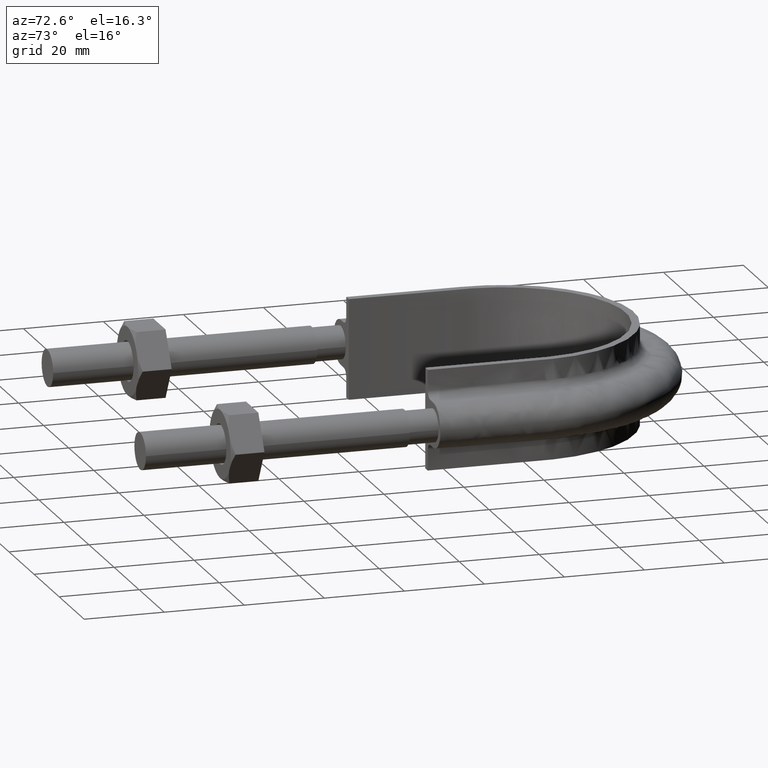
[diagram: clean part render]
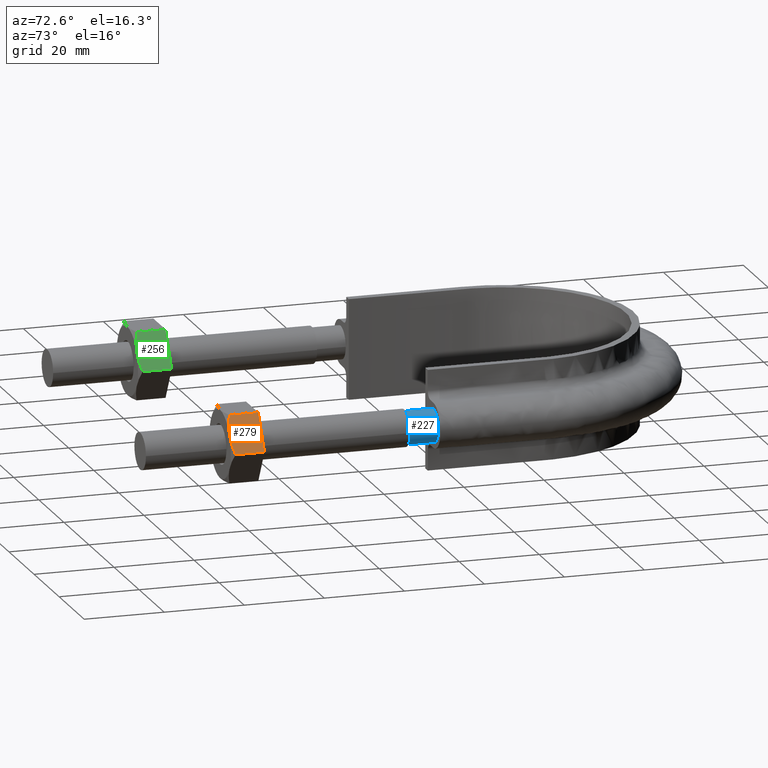
[diagram: same view with three faces highlighted in distinct colors, each labeled with its STEP entity id]
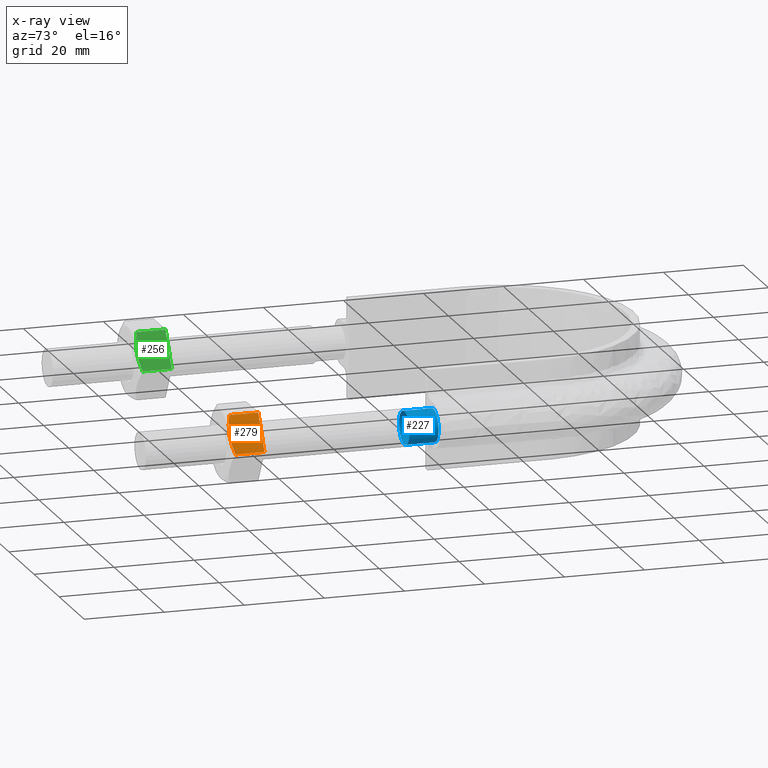
[diagram: x-ray of the same camera — body ghosted, the three highlighted faces saturated]
A machine part, auxiliary view with three faces highlighted in distinct colors.
The next image is the same camera in x-ray (body ghosted, the three faces saturated) — at least one of them is partly hidden behind the body in this view.
Their STEP definitions:

[orange] entity #279 — the highlighted planar face has unit normal (-0.866, 0, -0.5).
#279 = ADVANCED_FACE( '', ( #433 ), #434, .F. );
#433 = FACE_OUTER_BOUND( '', #1430, .T. );
#434 = PLANE( '', #1431 );
#1430 = EDGE_LOOP( '', ( #1892, #1893, #1894, #1895, #1896 ) );
#1431 = AXIS2_PLACEMENT_3D( '', #1897, #1898, #1899 );
#1892 = ORIENTED_EDGE( '', *, *, #2137, .F. );
#1893 = ORIENTED_EDGE( '', *, *, #2104, .F. );
#1894 = ORIENTED_EDGE( '', *, *, #2138, .F. );
#1895 = ORIENTED_EDGE( '', *, *, #2121, .F. );
#1896 = ORIENTED_EDGE( '', *, *, #2132, .F. );
#1897 = CARTESIAN_POINT( '', ( 41.9074772881085, 27.9999999999964, 8.50000000000193 ) );
#1898 = DIRECTION( '', ( -0.866025403784242, 1.81492883563574E-016, -0.500000000000340 ) );
#1899 = DIRECTION( '', ( -2.44921270764476E-016, -1.00000000000000, 6.12303176911189E-017 ) );
#2104 = EDGE_CURVE( '', #2319, #2322, #2323, .T. );
#2121 = EDGE_CURVE( '', #2351, #2353, #2354, .T. );
#2132 = EDGE_CURVE( '', #2372, #2351, #2374, .T. );
#2137 = EDGE_CURVE( '', #2322, #2372, #2381, .T. );
#2138 = EDGE_CURVE( '', #2353, #2319, #2382, .F. );
#2319 = VERTEX_POINT( '', #2902 );
#2322 = VERTEX_POINT( '', #2905 );
#2323 = B_SPLINE_CURVE_WITH_KNOTS( '', 3, ( #2906, #2907, #2908, #2909, #2910, #2911 ), .UNSPECIFIED., .F., .F., ( 4, 2, 4 ), ( 0.0107224888714710, 0.0132032657403443, 0.0156840426092177 ), .UNSPECIFIED. );
#2351 = VERTEX_POINT( '', #2961 );
#2353 = VERTEX_POINT( '', #2963 );
#2354 = LINE( '', #2964, #2965 );
#2372 = VERTEX_POINT( '', #2987 );
#2374 = LINE( '', #2989, #2990 );
#2381 = B_SPLINE_CURVE_WITH_KNOTS( '', 3, ( #3010, #3011, #3012, #3013, #3014, #3015 ), .UNSPECIFIED., .F., .F., ( 4, 2, 4 ), ( 0.0156840426092177, 0.0181633795370703, 0.0206427164649230 ), .UNSPECIFIED. );
#2382 = LINE( '', #3016, #3017 );
#2902 = CARTESIAN_POINT( '', ( 46.7999656118192, 20.7505553499429, 0.0259616479052294 ) );
#2905 = CARTESIAN_POINT( '', ( 44.3612159321661, 19.9999999999964, 4.25000000000289 ) );
#2906 = CARTESIAN_POINT( '', ( 46.7999656118192, 20.7505553499429, 0.0259616479052272 ) );
#2907 = CARTESIAN_POINT( '', ( 46.4026528986380, 20.5222200930378, 0.714127453627445 ) );
#2908 = CARTESIAN_POINT( '', ( 46.0018172433292, 20.3336547117137, 1.40839517410688 ) );
#2909 = CARTESIAN_POINT( '', ( 45.1899065168897, 20.0721149177781, 2.81466580350890 ) );
#2910 = CARTESIAN_POINT( '', ( 44.7787553089721, 19.9999999999964, 3.52680058521480 ) );
#2911 = CARTESIAN_POINT( '', ( 44.3612159321661, 19.9999999999964, 4.25000000000289 ) );
#2961 = CARTESIAN_POINT( '', ( 41.9224662525130, 27.9999999999964, 8.47403835210055 ) );
#2963 = CARTESIAN_POINT( '', ( 46.7999656118192, 27.9999999999964, 0.0259616479052289 ) );
#2964 = CARTESIAN_POINT( '', ( 39.4612159321627, 27.9999999999964, 12.7370489570885 ) );
#2965 = VECTOR( '', #3260, 1000.00000000000 );
#2987 = CARTESIAN_POINT( '', ( 41.9224662525130, 20.7505553499429, 8.47403835210055 ) );
#2989 = CARTESIAN_POINT( '', ( 41.9224662525130, 27.9999999999964, 8.47403835210055 ) );
#2990 = VECTOR( '', #3283, 1000.00000000000 );
#3010 = CARTESIAN_POINT( '', ( 44.3612159321661, 19.9999999999964, 4.25000000000289 ) );
#3011 = CARTESIAN_POINT( '', ( 43.9439189117299, 19.9999999999964, 4.97277964124482 ) );
#3012 = CARTESIAN_POINT( '', ( 43.5316667955647, 20.0723104611226, 5.68682125197000 ) );
#3013 = CARTESIAN_POINT( '', ( 42.7198122206852, 20.3339943747697, 7.09299462401738 ) );
#3014 = CARTESIAN_POINT( '', ( 42.3192870260511, 20.5225028103057, 7.78672461083439 ) );
#3015 = CARTESIAN_POINT( '', ( 41.9224662525130, 20.7505553499429, 8.47403835210055 ) );
#3016 = CARTESIAN_POINT( '', ( 46.7999656118192, 27.9999999999964, 0.0259616479052289 ) );
#3017 = VECTOR( '', #3288, 1000.00000000000 );
#3260 = DIRECTION( '', ( 0.500000000000340, -1.75487645984610E-016, -0.866025403784242 ) );
#3283 = DIRECTION( '', ( 2.44921270764476E-016, 1.00000000000000, -6.12303176911189E-017 ) );
#3288 = DIRECTION( '', ( 2.44921270764476E-016, 1.00000000000000, -6.12303176911189E-017 ) );

[blue] entity #227 — the highlighted cylindrical surface (bore or boss wall) has radius 4.1 mm, axis along (0, 1, -0).
#227 = ADVANCED_FACE( '', ( #316, #317 ), #318, .T. );
#316 = FACE_OUTER_BOUND( '', #1164, .T. );
#317 = FACE_OUTER_BOUND( '', #1165, .T. );
#318 = CYLINDRICAL_SURFACE( '', #1166, 4.10000000000000 );
#1164 = EDGE_LOOP( '', ( #1534, #1535, #1536, #1537, #1538, #1539, #1540 ) );
#1165 = EDGE_LOOP( '', ( #1541 ) );
#1166 = AXIS2_PLACEMENT_3D( '', #1542, #1543, #1544 );
#1534 = ORIENTED_EDGE( '', *, *, #2025, .T. );
#1535 = ORIENTED_EDGE( '', *, *, #2026, .T. );
#1536 = ORIENTED_EDGE( '', *, *, #2027, .T. );
#1537 = ORIENTED_EDGE( '', *, *, #2028, .T. );
#1538 = ORIENTED_EDGE( '', *, *, #2029, .T. );
#1539 = ORIENTED_EDGE( '', *, *, #2030, .T. );
#1540 = ORIENTED_EDGE( '', *, *, #2031, .T. );
#1541 = ORIENTED_EDGE( '', *, *, #2032, .T. );
#1542 = CARTESIAN_POINT( '', ( 37.0000000000000, 73.3000000000000, -2.07570776972893E-015 ) );
#1543 = DIRECTION( '', ( 2.44921270764475E-016, 1.00000000000000, -6.12303176911189E-017 ) );
#1544 = DIRECTION( '', ( 1.00000000000000, -2.44921270764475E-016, 0.000000000000000 ) );
#2025 = EDGE_CURVE( '', #2195, #2196, #2197, .T. );
#2026 = EDGE_CURVE( '', #2196, #2198, #2199, .T. );
#2027 = EDGE_CURVE( '', #2198, #2200, #2201, .T. );
#2028 = EDGE_CURVE( '', #2200, #2202, #2203, .T. );
#2029 = EDGE_CURVE( '', #2202, #2204, #2205, .T. );
#2030 = EDGE_CURVE( '', #2204, #2206, #2207, .T. );
#2031 = EDGE_CURVE( '', #2206, #2195, #2208, .T. );
#2032 = EDGE_CURVE( '', #2209, #2209, #2210, .F. );
#2195 = VERTEX_POINT( '', #2650 );
#2196 = VERTEX_POINT( '', #2651 );
#2197 = CIRCLE( '', #2652, 4.10000000000000 );
#2198 = VERTEX_POINT( '', #2653 );
#2199 = CIRCLE( '', #2654, 4.10000000000000 );
#2200 = VERTEX_POINT( '', #2655 );
#2201 = CIRCLE( '', #2656, 4.10000000000000 );
#2202 = VERTEX_POINT( '', #2657 );
#2203 = CIRCLE( '', #2658, 4.10000000000000 );
#2204 = VERTEX_POINT( '', #2659 );
#2205 = CIRCLE( '', #2660, 4.10000000000000 );
#2206 = VERTEX_POINT( '', #2661 );
#2207 = CIRCLE( '', #2662, 4.10000000000000 );
#2208 = CIRCLE( '', #2663, 4.10000000000000 );
#2209 = VERTEX_POINT( '', #2664 );
#2210 = CIRCLE( '', #2665, 4.10000000000000 );
#2650 = CARTESIAN_POINT( '', ( 40.6939723583998, 73.3000000000001, 1.77892333038233 ) );
#2651 = CARTESIAN_POINT( '', ( 37.9123358292209, 73.3000000000001, 3.99720443994547 ) );
#2652 = AXIS2_PLACEMENT_3D( '', #3104, #3105, #3106 );
#2653 = CARTESIAN_POINT( '', ( 34.4436918123789, 73.3000000000001, 3.20550907811872 ) );
#2654 = AXIS2_PLACEMENT_3D( '', #3107, #3108, #3109 );
#2655 = CARTESIAN_POINT( '', ( 32.9000000000000, 73.3000000000000, 3.25958505856969E-013 ) );
#2656 = AXIS2_PLACEMENT_3D( '', #3110, #3111, #3112 );
#2657 = CARTESIAN_POINT( '', ( 34.4436918123815, 73.3000000000001, -3.20550907812077 ) );
#2658 = AXIS2_PLACEMENT_3D( '', #3113, #3114, #3115 );
#2659 = CARTESIAN_POINT( '', ( 37.9123358292214, 73.3000000000001, -3.99720443994537 ) );
#2660 = AXIS2_PLACEMENT_3D( '', #3116, #3117, #3118 );
#2661 = CARTESIAN_POINT( '', ( 40.6939723584000, 73.3000000000001, -1.77892333038182 ) );
#2662 = AXIS2_PLACEMENT_3D( '', #3119, #3120, #3121 );
#2663 = AXIS2_PLACEMENT_3D( '', #3122, #3123, #3124 );
#2664 = CARTESIAN_POINT( '', ( 41.1000000000000, 66.0000000000000, -1.62872645058376E-015 ) );
#2665 = AXIS2_PLACEMENT_3D( '', #3125, #3126, #3127 );
#3104 = CARTESIAN_POINT( '', ( 37.0000000000000, 73.3000000000000, -2.07570776972893E-015 ) );
#3105 = DIRECTION( '', ( -2.44921270764475E-016, -1.00000000000000, 6.12303176911189E-017 ) );
#3106 = DIRECTION( '', ( 1.00000000000000, -2.44921270764475E-016, 0.000000000000000 ) );
#3107 = CARTESIAN_POINT( '', ( 37.0000000000000, 73.3000000000000, -2.07570776972893E-015 ) );
#3108 = DIRECTION( '', ( -2.44921270764475E-016, -1.00000000000000, 6.12303176911189E-017 ) );
#3109 = DIRECTION( '', ( 1.00000000000000, -2.44921270764475E-016, 0.000000000000000 ) );
#3110 = CARTESIAN_POINT( '', ( 37.0000000000000, 73.3000000000000, -2.07570776972893E-015 ) );
#3111 = DIRECTION( '', ( -2.44921270764475E-016, -1.00000000000000, 6.12303176911189E-017 ) );
#3112 = DIRECTION( '', ( 1.00000000000000, -2.44921270764475E-016, 0.000000000000000 ) );
#3113 = CARTESIAN_POINT( '', ( 37.0000000000000, 73.3000000000000, -2.07570776972893E-015 ) );
#3114 = DIRECTION( '', ( -2.44921270764475E-016, -1.00000000000000, 6.12303176911189E-017 ) );
#3115 = DIRECTION( '', ( 1.00000000000000, -2.44921270764475E-016, 0.000000000000000 ) );
#3116 = CARTESIAN_POINT( '', ( 37.0000000000000, 73.3000000000000, -2.07570776972893E-015 ) );
#3117 = DIRECTION( '', ( -2.44921270764475E-016, -1.00000000000000, 6.12303176911189E-017 ) );
#3118 = DIRECTION( '', ( 1.00000000000000, -2.44921270764475E-016, 0.000000000000000 ) );
#3119 = CARTESIAN_POINT( '', ( 37.0000000000000, 73.3000000000000, -2.07570776972893E-015 ) );
#3120 = DIRECTION( '', ( -2.44921270764475E-016, -1.00000000000000, 6.12303176911189E-017 ) );
#3121 = DIRECTION( '', ( 1.00000000000000, -2.44921270764475E-016, 0.000000000000000 ) );
#3122 = CARTESIAN_POINT( '', ( 37.0000000000000, 73.3000000000000, -2.07570776972893E-015 ) );
#3123 = DIRECTION( '', ( -2.44921270764475E-016, -1.00000000000000, 6.12303176911189E-017 ) );
#3124 = DIRECTION( '', ( 1.00000000000000, -2.44921270764475E-016, 0.000000000000000 ) );
#3125 = CARTESIAN_POINT( '', ( 37.0000000000000, 66.0000000000000, -1.62872645058376E-015 ) );
#3126 = DIRECTION( '', ( -2.44921270764476E-016, -1.00000000000000, 6.12303176911189E-017 ) );
#3127 = DIRECTION( '', ( 1.00000000000000, -2.44921270764476E-016, 0.000000000000000 ) );

[green] entity #256 — the highlighted planar face has unit normal (-0.866, 0, -0.5).
#256 = ADVANCED_FACE( '', ( #382 ), #383, .F. );
#382 = FACE_OUTER_BOUND( '', #1379, .T. );
#383 = PLANE( '', #1380 );
#1379 = EDGE_LOOP( '', ( #1719, #1720, #1721, #1722, #1723 ) );
#1380 = AXIS2_PLACEMENT_3D( '', #1724, #1725, #1726 );
#1719 = ORIENTED_EDGE( '', *, *, #2085, .F. );
#1720 = ORIENTED_EDGE( '', *, *, #2052, .F. );
#1721 = ORIENTED_EDGE( '', *, *, #2086, .F. );
#1722 = ORIENTED_EDGE( '', *, *, #2069, .F. );
#1723 = ORIENTED_EDGE( '', *, *, #2080, .F. );
#1724 = CARTESIAN_POINT( '', ( -32.0925227118915, 27.9999999999964, 8.50000000000193 ) );
#1725 = DIRECTION( '', ( -0.866025403784242, 1.81492883563574E-016, -0.500000000000340 ) );
#1726 = DIRECTION( '', ( -2.44921270764476E-016, -1.00000000000000, 6.12303176911189E-017 ) );
#2052 = EDGE_CURVE( '', #2233, #2236, #2237, .T. );
#2069 = EDGE_CURVE( '', #2265, #2267, #2268, .T. );
#2080 = EDGE_CURVE( '', #2286, #2265, #2288, .T. );
#2085 = EDGE_CURVE( '', #2236, #2286, #2295, .T. );
#2086 = EDGE_CURVE( '', #2267, #2233, #2296, .F. );
#2233 = VERTEX_POINT( '', #2730 );
#2236 = VERTEX_POINT( '', #2733 );
#2237 = B_SPLINE_CURVE_WITH_KNOTS( '', 3, ( #2734, #2735, #2736, #2737, #2738, #2739 ), .UNSPECIFIED., .F., .F., ( 4, 2, 4 ), ( 0.0107224888714710, 0.0132032657403443, 0.0156840426092177 ), .UNSPECIFIED. );
#2265 = VERTEX_POINT( '', #2789 );
#2267 = VERTEX_POINT( '', #2791 );
#2268 = LINE( '', #2792, #2793 );
#2286 = VERTEX_POINT( '', #2815 );
#2288 = LINE( '', #2817, #2818 );
#2295 = B_SPLINE_CURVE_WITH_KNOTS( '', 3, ( #2838, #2839, #2840, #2841, #2842, #2843 ), .UNSPECIFIED., .F., .F., ( 4, 2, 4 ), ( 0.0156840426092177, 0.0181633795370703, 0.0206427164649230 ), .UNSPECIFIED. );
#2296 = LINE( '', #2844, #2845 );
#2730 = CARTESIAN_POINT( '', ( -27.2000343881808, 20.7505553499429, 0.0259616479052294 ) );
#2733 = CARTESIAN_POINT( '', ( -29.6387840678339, 19.9999999999964, 4.25000000000289 ) );
#2734 = CARTESIAN_POINT( '', ( -27.2000343881808, 20.7505553499429, 0.0259616479052271 ) );
#2735 = CARTESIAN_POINT( '', ( -27.5973471013620, 20.5222200930378, 0.714127453627445 ) );
#2736 = CARTESIAN_POINT( '', ( -27.9981827566709, 20.3336547117137, 1.40839517410688 ) );
#2737 = CARTESIAN_POINT( '', ( -28.8100934831103, 20.0721149177781, 2.81466580350890 ) );
#2738 = CARTESIAN_POINT( '', ( -29.2212446910279, 19.9999999999964, 3.52680058521480 ) );
#2739 = CARTESIAN_POINT( '', ( -29.6387840678339, 19.9999999999964, 4.25000000000289 ) );
#2789 = CARTESIAN_POINT( '', ( -32.0775337474870, 27.9999999999964, 8.47403835210055 ) );
#2791 = CARTESIAN_POINT( '', ( -27.2000343881808, 27.9999999999964, 0.0259616479052289 ) );
#2792 = CARTESIAN_POINT( '', ( -34.5387840678373, 27.9999999999964, 12.7370489570885 ) );
#2793 = VECTOR( '', #3176, 1000.00000000000 );
#2815 = CARTESIAN_POINT( '', ( -32.0775337474870, 20.7505553499429, 8.47403835210055 ) );
#2817 = CARTESIAN_POINT( '', ( -32.0775337474870, 27.9999999999964, 8.47403835210055 ) );
#2818 = VECTOR( '', #3199, 1000.00000000000 );
#2838 = CARTESIAN_POINT( '', ( -29.6387840678339, 19.9999999999964, 4.25000000000289 ) );
#2839 = CARTESIAN_POINT( '', ( -30.0560810882701, 19.9999999999964, 4.97277964124482 ) );
#2840 = CARTESIAN_POINT( '', ( -30.4683332044353, 20.0723104611226, 5.68682125197000 ) );
#2841 = CARTESIAN_POINT( '', ( -31.2801877793149, 20.3339943747697, 7.09299462401738 ) );
#2842 = CARTESIAN_POINT( '', ( -31.6807129739489, 20.5225028103057, 7.78672461083439 ) );
#2843 = CARTESIAN_POINT( '', ( -32.0775337474870, 20.7505553499429, 8.47403835210055 ) );
#2844 = CARTESIAN_POINT( '', ( -27.2000343881808, 27.9999999999964, 0.0259616479052289 ) );
#2845 = VECTOR( '', #3204, 1000.00000000000 );
#3176 = DIRECTION( '', ( 0.500000000000340, -1.75487645984610E-016, -0.866025403784242 ) );
#3199 = DIRECTION( '', ( 2.44921270764476E-016, 1.00000000000000, -6.12303176911189E-017 ) );
#3204 = DIRECTION( '', ( 2.44921270764476E-016, 1.00000000000000, -6.12303176911189E-017 ) );